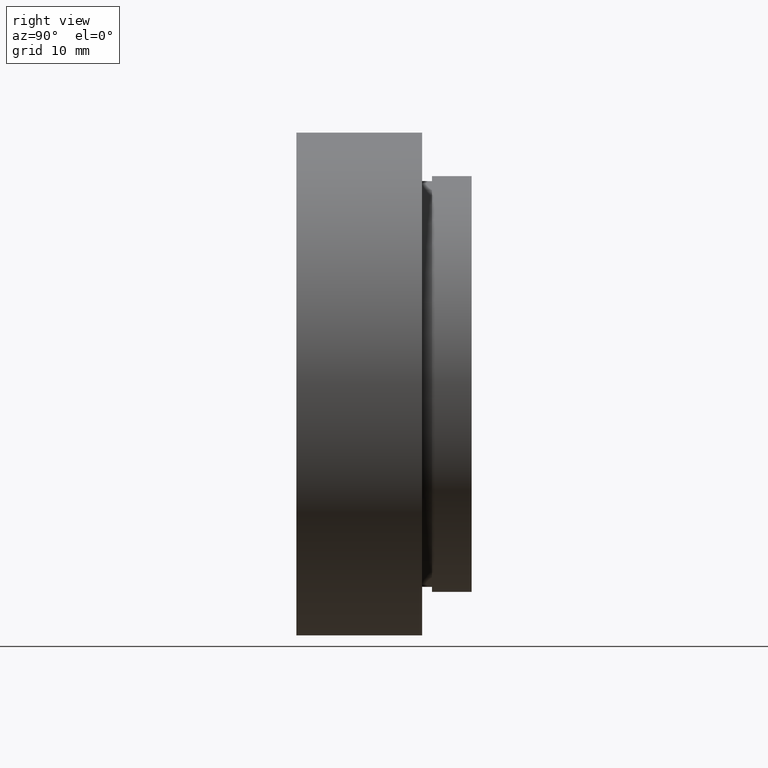
[diagram: clean part render]
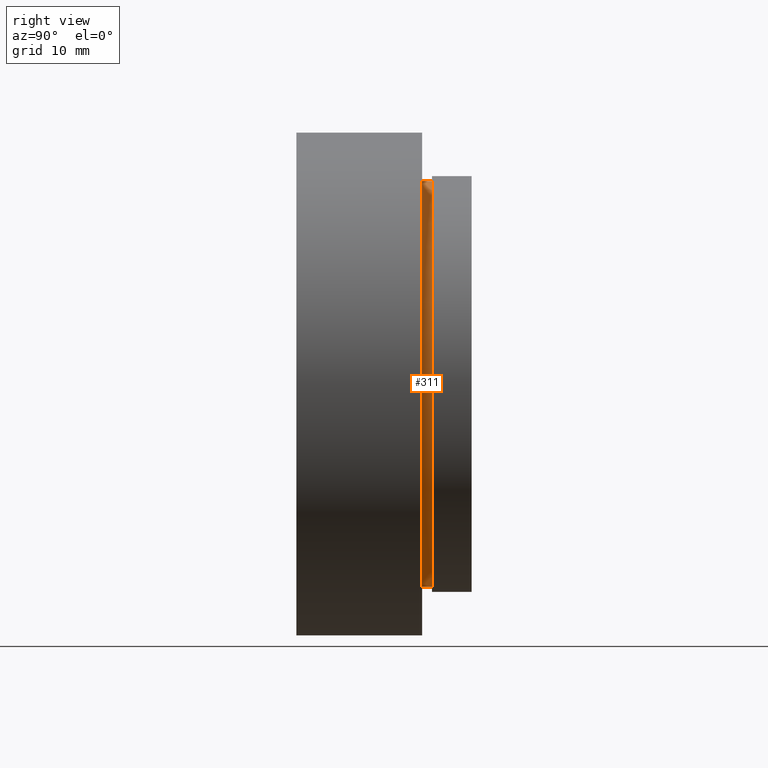
[diagram: same view with one face highlighted and labeled with its STEP entity id]
A machine part, right view. The second image highlights one B-rep face of the part: STEP entity #311.
In plain terms, the highlighted cylindrical surface (partial cylindrical patch) has radius 20.5 mm, axis along (-0, 1, -0).
Its self-contained STEP definition (entity closure, byte-faithful):
#24 = EDGE_CURVE ( 'NONE', #178, #330, #186, .T. ) ;
#38 = CARTESIAN_POINT ( 'NONE',  ( 2.510525938252076100E-015, 161.3761669434274500, -20.50000000000001800 ) ) ;
#82 = CARTESIAN_POINT ( 'NONE',  ( 0.0000000000000000000, 12.69999999999998900, 0.0000000000000000000 ) ) ;
#110 = EDGE_LOOP ( 'NONE', ( #264, #516, #179, #139 ) ) ;
#139 = ORIENTED_EDGE ( 'NONE', *, *, #323, .F. ) ;
#144 = DIRECTION ( 'NONE',  ( -0.0000000000000000000, 1.000000000000000000, -0.0000000000000000000 ) ) ;
#163 = CARTESIAN_POINT ( 'NONE',  ( 0.0000000000000000000, 13.69999999999999000, 0.0000000000000000000 ) ) ;
#167 = FACE_OUTER_BOUND ( 'NONE', #110, .T. ) ;
#178 = VERTEX_POINT ( 'NONE', #562 ) ;
#179 = ORIENTED_EDGE ( 'NONE', *, *, #24, .F. ) ;
#186 = CIRCLE ( 'NONE', #350, 20.50000000000001800 ) ;
#209 = LINE ( 'NONE', #38, #244 ) ;
#221 = VERTEX_POINT ( 'NONE', #474 ) ;
#223 = DIRECTION ( 'NONE',  ( 0.0000000000000000000, 0.0000000000000000000, 1.000000000000000000 ) ) ;
#226 = DIRECTION ( 'NONE',  ( -0.0000000000000000000, 1.000000000000000000, -0.0000000000000000000 ) ) ;
#228 = AXIS2_PLACEMENT_3D ( 'NONE', #82, #226, #223 ) ;
#240 = CARTESIAN_POINT ( 'NONE',  ( 0.0000000000000000000, 161.3761669434274500, 0.0000000000000000000 ) ) ;
#242 = CARTESIAN_POINT ( 'NONE',  ( 2.510525938252076100E-015, 13.69999999999999000, -20.50000000000001800 ) ) ;
#244 = VECTOR ( 'NONE', #144, 1000.000000000000000 ) ;
#254 = EDGE_CURVE ( 'NONE', #221, #330, #209, .T. ) ;
#264 = ORIENTED_EDGE ( 'NONE', *, *, #413, .T. ) ;
#287 = DIRECTION ( 'NONE',  ( 0.0000000000000000000, 0.0000000000000000000, 1.000000000000000000 ) ) ;
#293 = CIRCLE ( 'NONE', #228, 20.50000000000001800 ) ;
#299 = CYLINDRICAL_SURFACE ( 'NONE', #544, 20.50000000000001800 ) ;
#304 = DIRECTION ( 'NONE',  ( -0.0000000000000000000, 1.000000000000000000, -0.0000000000000000000 ) ) ;
#311 = ADVANCED_FACE ( 'NONE', ( #167 ), #299, .T. ) ;
#323 = EDGE_CURVE ( 'NONE', #472, #178, #360, .T. ) ;
#330 = VERTEX_POINT ( 'NONE', #242 ) ;
#337 = CARTESIAN_POINT ( 'NONE',  ( 0.0000000000000000000, 161.3761669434274500, 20.50000000000001800 ) ) ;
#343 = DIRECTION ( 'NONE',  ( -0.0000000000000000000, 1.000000000000000000, -0.0000000000000000000 ) ) ;
#350 = AXIS2_PLACEMENT_3D ( 'NONE', #163, #304, #597 ) ;
#360 = LINE ( 'NONE', #337, #586 ) ;
#413 = EDGE_CURVE ( 'NONE', #472, #221, #293, .T. ) ;
#472 = VERTEX_POINT ( 'NONE', #621 ) ;
#474 = CARTESIAN_POINT ( 'NONE',  ( 2.510525938252076100E-015, 12.69999999999998900, -20.50000000000001800 ) ) ;
#489 = DIRECTION ( 'NONE',  ( -0.0000000000000000000, 1.000000000000000000, -0.0000000000000000000 ) ) ;
#516 = ORIENTED_EDGE ( 'NONE', *, *, #254, .T. ) ;
#544 = AXIS2_PLACEMENT_3D ( 'NONE', #240, #489, #287 ) ;
#562 = CARTESIAN_POINT ( 'NONE',  ( 0.0000000000000000000, 13.69999999999999000, 20.50000000000001800 ) ) ;
#586 = VECTOR ( 'NONE', #343, 1000.000000000000000 ) ;
#597 = DIRECTION ( 'NONE',  ( 0.0000000000000000000, 0.0000000000000000000, 1.000000000000000000 ) ) ;
#621 = CARTESIAN_POINT ( 'NONE',  ( 0.0000000000000000000, 12.69999999999998900, 20.50000000000001800 ) ) ;